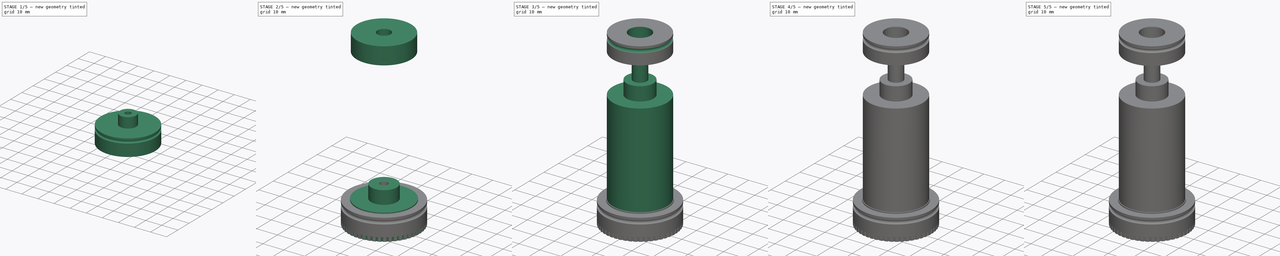
[diagram: build sequence overview — one tinted view per stage of 5, left to right]
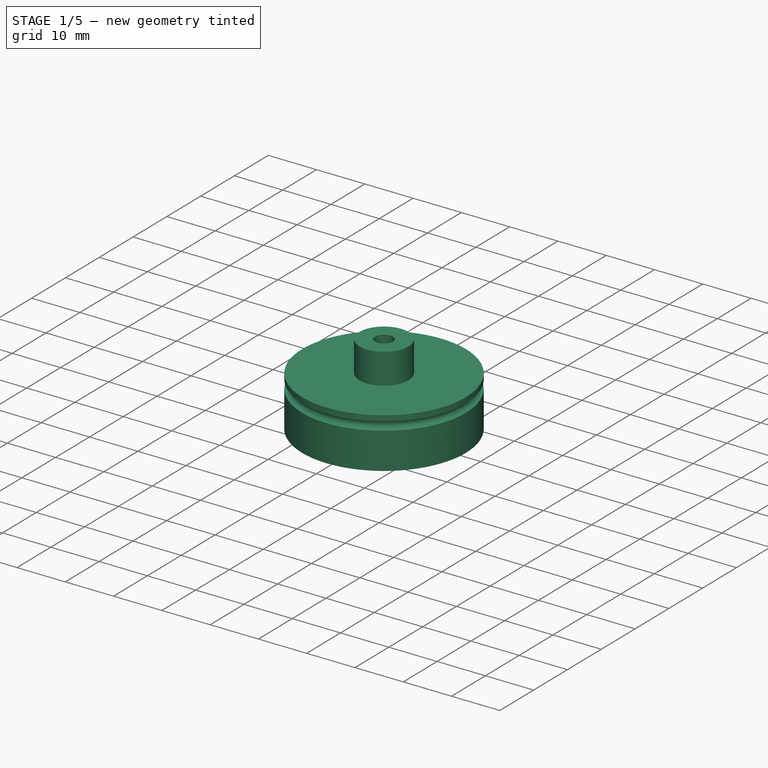
[diagram: stage 1 of 5 — iso view after this stage's code; geometry added in this stage tinted green]
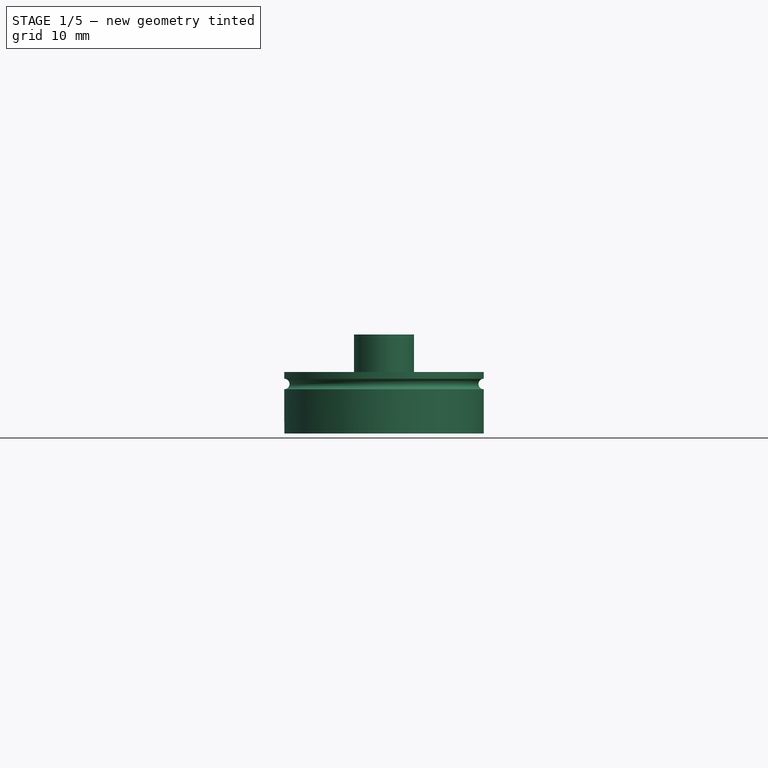
[diagram: stage 1 of 5 — front view after this stage's code; geometry added in this stage tinted green]
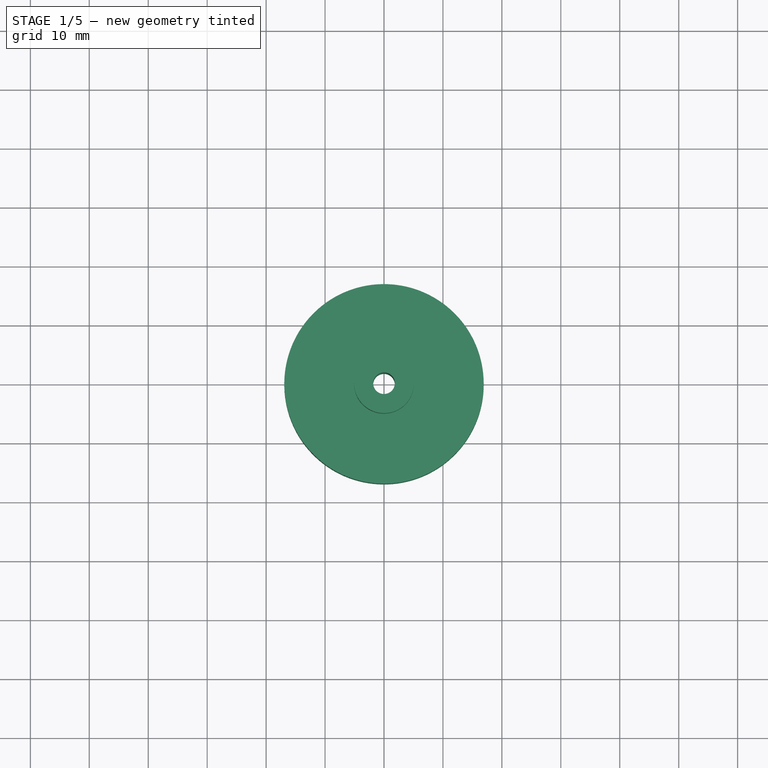
[diagram: stage 1 of 5 — top view after this stage's code; geometry added in this stage tinted green]
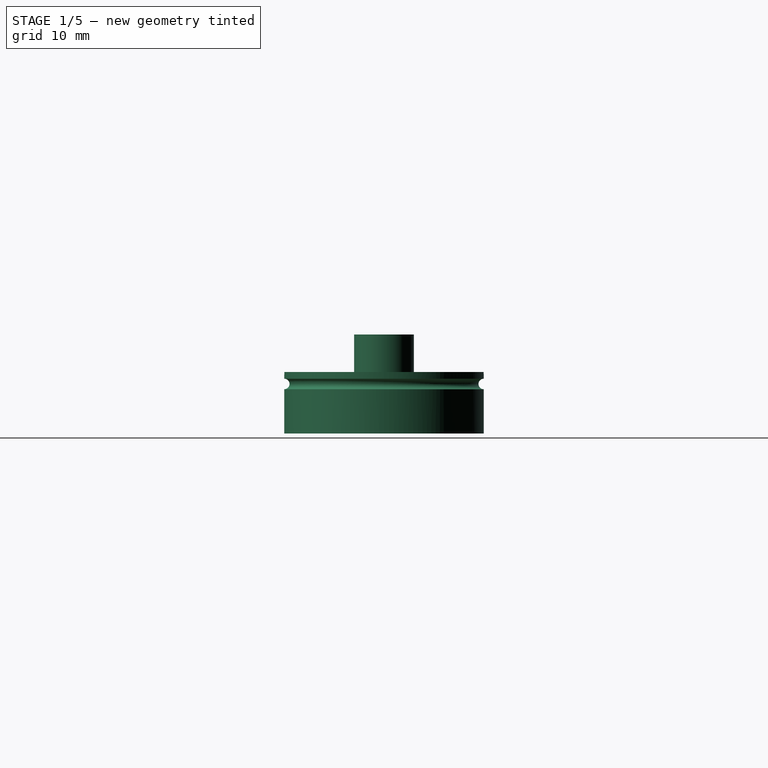
[diagram: stage 1 of 5 — right view after this stage's code; geometry added in this stage tinted green]
FCSTD DOCUMENT  (FreeCAD 0.17R8614 (Git))
Label: fermiac_3d_print_components
License: CreativeCommons Attribution-ShareAlike
LicenseURL: http://creativecommons.org/licenses/by-sa/4.0/
objects: Sketcher::SketchObject×41, PartDesign::Pad×22, PartDesign::Pocket×12, PartDesign::Groove×7, PartDesign::Body×7, PartDesign::ShapeBinder×2, PartDesign::PolarPattern×2
note: 134 computed .brp shape members not serialized (recipe doc carries the construction recipe); baked Part::Feature solids carry a one-line shape summary decoded from their .brp

FEATURE [PartDesign::Body] Body004  label="Wheel E"
  Model = -> [Sketch027,Pad017,Sketch028,Pad018,Sketch029,Pocket006,Sketch031,Groove004,Sketch032,Pocket007,PolarPattern]
  Origin = -> Body004Origin
  Tip = -> Pad017
FEATURE [Sketcher::SketchObject] Sketch033
  MapMode = 5
  Support = -> [XY_Plane005]
  sketch-geometry (1):
    g0: Circle CenterX=0 CenterY=0 CenterZ=0 NormalX=0 NormalY=0 NormalZ=1 Radius=16.9164
  constraints (2):
    c: Coincident(g0,g-1)
    c: Radius(g0) = 16.9164
FEATURE [PartDesign::Pad] Pad019
  Length = 10.43
  Length2 = 100
  Profile = -> Sketch033
  Type = 0
FEATURE [Sketcher::SketchObject] Sketch034
  MapMode = 5
  Placement = pos=(0,0,10.43) rot=(0,0,1;0rad)
  Support = -> [Pad019]
  sketch-geometry (1):
    g0: Circle CenterX=0 CenterY=0 CenterZ=0 NormalX=0 NormalY=0 NormalZ=1 Radius=5.08
  constraints (2):
    c: Coincident(g0,g-1)
    c: Radius(g0) = 5.08
FEATURE [PartDesign::Pad] Pad020
  BaseFeature = -> Pad019
  Length = 6.35
  Length2 = 100
  Profile = -> Sketch034
  Type = 0
FEATURE [Sketcher::SketchObject] Sketch035
  MapMode = 5
  Placement = pos=(0,0,0) rot=(1,0,0;3.14159rad)
  Support = -> [Pad020]
  sketch-geometry (1):
    g0: Circle CenterX=0 CenterY=0 CenterZ=0 NormalX=0 NormalY=0 NormalZ=1 Radius=1.84
  constraints (2):
    c: Coincident(g0,g-1)
    c: Radius(g0) = 1.84
FEATURE [PartDesign::Pocket] Pocket008
  BaseFeature = -> Pad020
  Length = 5
  Profile = -> Sketch035
  Type = 1
FEATURE [Sketcher::SketchObject] Sketch036
  ExternalGeometry = -> [Pocket008]
  MapMode = 5
  Placement = pos=(0,0,0) rot=(1,0,0;1.5708rad)
  Support = -> [XZ_Plane005]
  sketch-geometry (2):
    g0: GeomPoint [constr] X=0 Y=10.43 Z=0
    g1: Circle CenterX=-16.9164 CenterY=8.398 CenterZ=0 NormalX=0 NormalY=0 NormalZ=1 Radius=0.89
  constraints (5):
    c: PointOnObject(g0,g-3)
    c: Radius(g1) = 0.89
    c: DistanceY(g1,g0) = 2.032
    c: DistanceX(g1,g0) = 16.9164
    c: PointOnObject(g0,g-2)
FEATURE [PartDesign::Groove] Groove005
  Angle = 360
  Axis = (0,0,1)
  Base = (0,0,0)
  BaseFeature = -> Pocket008
  Profile = -> Sketch036
  ReferenceAxis = -> Z_Axis005
  Reversed = true
FEATURE [Sketcher::SketchObject] Sketch037
  ExternalGeometry = -> [Groove005]
  MapMode = 5
  Placement = pos=(0,0,0) rot=(1,0,0;3.14159rad)
  Support = -> [Groove005]
  sketch-geometry (1):
    g0: Circle CenterX=-16.9164 CenterY=0 CenterZ=0 NormalX=0 NormalY=0 NormalZ=1 Radius=0.4
  constraints (3):
    c: PointOnObject(g0,g-1)
    c: PointOnObject(g0,g-3)
    c: Radius(g0) = 0.4
FEATURE [PartDesign::Pocket] Pocket009
  BaseFeature = -> Groove005
  Length = 2
  Profile = -> Sketch037
  Type = 0
FEATURE [PartDesign::Body] Body005  label="Wheel C"
  Model = -> [Sketch033,Pad019,Sketch034,Pad020,Sketch035,Pocket008,Sketch036,Groove005,Sketch037,Pocket009,PolarPattern001]
  Origin = -> Body005Origin
  Tip = -> Pad019
FEATURE [Sketcher::SketchObject] Sketch038
  MapMode = 5
  Support = -> [XY_Plane006]
  sketch-geometry (1):
    g0: Circle CenterX=0 CenterY=0 CenterZ=0 NormalX=0 NormalY=0 NormalZ=1 Radius=4.5
  constraints (2):
    c: Coincident(g0,g-1)
    c: Radius(g0) = 4.5
FEATURE [PartDesign::Pad] Pad021
  Length = 10
  Length2 = 100
  Profile = -> Sketch038
  Type = 0
FEATURE [Sketcher::SketchObject] Sketch039
  MapMode = 5
  Placement = pos=(0,0,0) rot=(1,0,0;3.14159rad)
  Support = -> [Pad021]
  sketch-geometry (1):
    g0: Circle CenterX=0 CenterY=0 CenterZ=0 NormalX=0 NormalY=0 NormalZ=1 Radius=1.84
  constraints (2):
    c: Coincident(g0,g-1)
    c: Radius(g0) = 1.84
FEATURE [PartDesign::Pocket] Pocket010
  BaseFeature = -> Pad021
  Length = 5
  Profile = -> Sketch039
  Type = 1
FEATURE [Sketcher::SketchObject] Sketch040
  MapMode = 5
  Placement = pos=(0,0,10) rot=(0,0,1;0rad)
  Support = -> [Pocket010]
  sketch-geometry (1):
    g0: Circle CenterX=0 CenterY=0 CenterZ=0 NormalX=0 NormalY=0 NormalZ=1 Radius=3.5
  constraints (2):
    c: Coincident(g0,g-1)
    c: Radius(g0) = 3.5
FEATURE [PartDesign::Pocket] Pocket011
  BaseFeature = -> Pocket010
  Length = 2
  Profile = -> Sketch040
  Type = 0
FEATURE [Sketcher::SketchObject] Sketch041
  MapMode = 5
  Placement = pos=(0,0,0) rot=(1,0,0;1.5708rad)
  Support = -> [XZ_Plane006]
  sketch-geometry (4):
    g0: ArcOfCircle CenterX=-4.5 CenterY=5.125 CenterZ=0 NormalX=0 NormalY=0 NormalZ=1 Radius=1.875 StartAngle=0 EndAngle=3.14159
    g1: ArcOfCircle CenterX=-4.5 CenterY=2.875 CenterZ=0 NormalX=0 NormalY=0 NormalZ=1 Radius=1.875 StartAngle=3.14159 EndAngle=6.28319
    g2: LineSegment StartX=-6.375 StartY=5.125 StartZ=0 EndX=-6.375 EndY=2.875 EndZ=0
    g3: LineSegment StartX=-2.625 StartY=5.125 StartZ=0 EndX=-2.625 EndY=2.875 EndZ=0
  constraints (10):
    c: Tangent(g0,g3) = 1.5708
    c: Tangent(g0,g2) = -1.5708
    c: Tangent(g2,g1) = -1.5708
    c: Tangent(g3,g1) = 1.5708
    c: Vertical(g2)
    c: Equal(g0,g1)
    c: Radius(g1) = 1.875
    c: DistanceX(g1,g-1) = 4.5
    c: DistanceY(g-1,g1) = 2.875
    c: DistanceY(g1,g0) = 2.25
FEATURE [PartDesign::Groove] Groove006
  Angle = 360
  Axis = (0,0,1)
  Base = (0,0,0)
  BaseFeature = -> Pocket011
  Profile = -> Sketch041
  ReferenceAxis = -> Z_Axis006
  Reversed = true
FEATURE [PartDesign::Body] Body006  label="Thumb Screw"
  Model = -> [Sketch038,Pad021,Sketch039,Pocket010,Sketch040,Pocket011,Sketch041,Groove006]
  Origin = -> Body006Origin
  Tip = -> Groove006
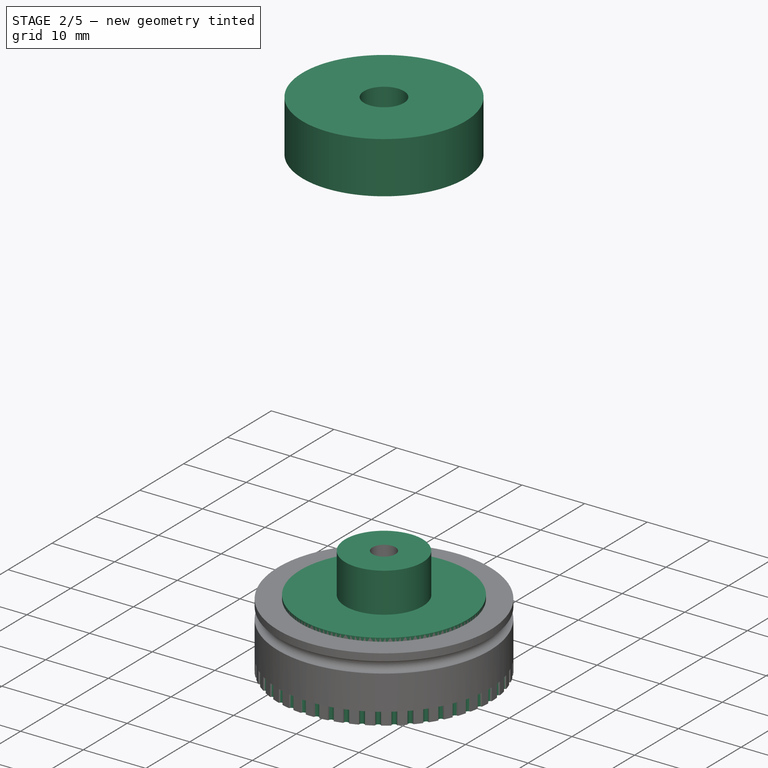
[diagram: stage 2 of 5 — iso view after this stage's code; geometry added in this stage tinted green]
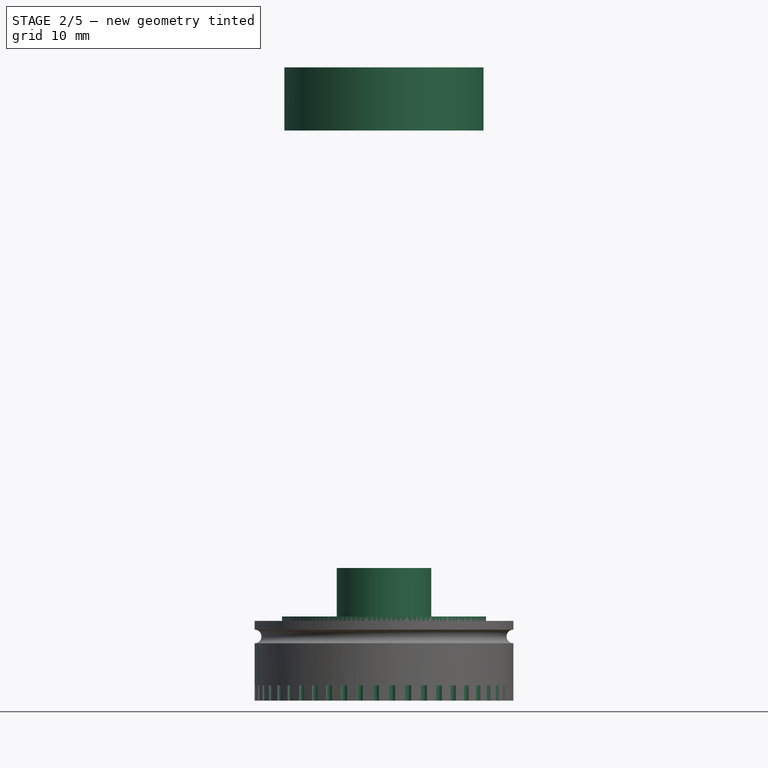
[diagram: stage 2 of 5 — front view after this stage's code; geometry added in this stage tinted green]
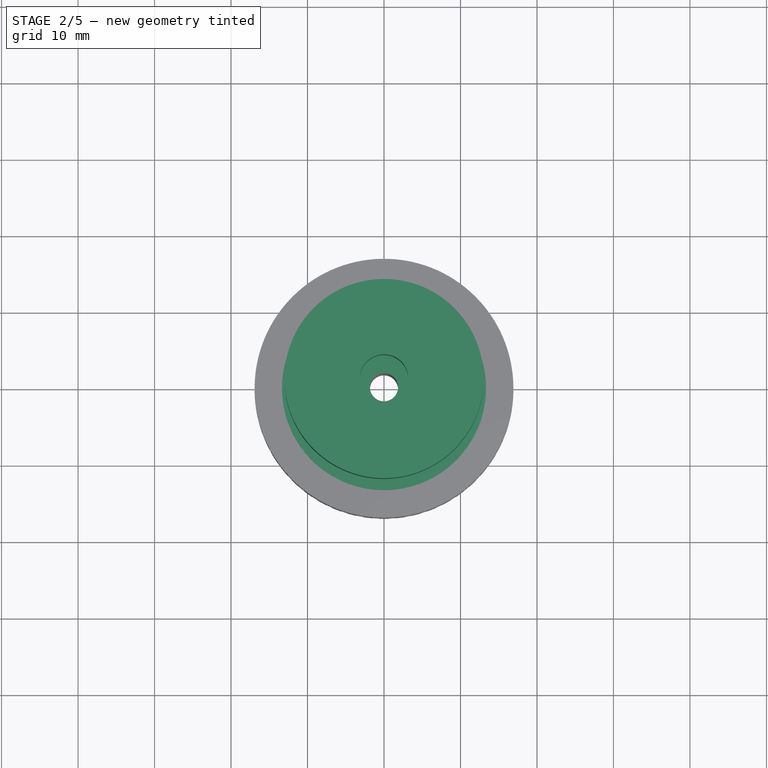
[diagram: stage 2 of 5 — top view after this stage's code; geometry added in this stage tinted green]
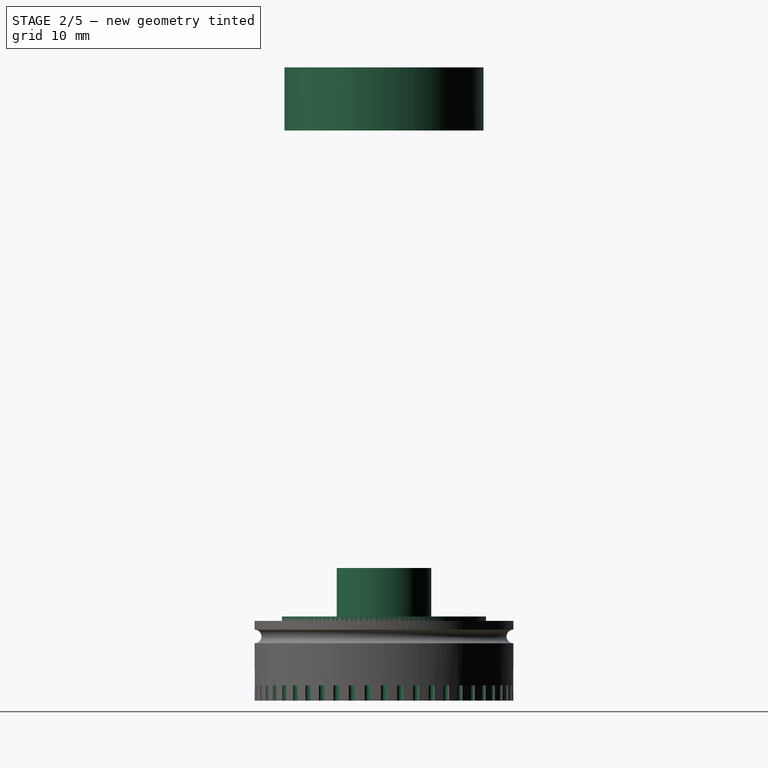
[diagram: stage 2 of 5 — right view after this stage's code; geometry added in this stage tinted green]
FEATURE [PartDesign::Body] Body002  label="Drum D (1)"
  Model = -> [Sketch017,Pad012,Sketch018,Pad013,Sketch019,Pad014,Sketch020,Pad015,Sketch021,Pocket003,Sketch022,Pocket004,Sketch023,Groove002]
  Origin = -> Body002Origin
  Tip = -> Groove002
FEATURE [PartDesign::ShapeBinder] CopyGroove002
FEATURE [Sketcher::SketchObject] Sketch024
  MapMode = 5
  Placement = pos=(0,0,74.549) rot=(0,0,1;0rad)
  Support = -> [CopyGroove002]
  sketch-geometry (2):
    g0: Circle CenterX=0 CenterY=0 CenterZ=0 NormalX=0 NormalY=0 NormalZ=1 Radius=13.0175
    g1: Circle CenterX=0 CenterY=0 CenterZ=0 NormalX=0 NormalY=0 NormalZ=1 Radius=3.18
  constraints (4):
    c: Coincident(g0,g-1)
    c: Radius(g0) = 13.0175
    c: Coincident(g1,g-1)
    c: Radius(g1) = 3.18
FEATURE [PartDesign::Pad] Pad016
  Length = 8.255
  Length2 = 100
  Profile = -> Sketch024
  Type = 0
FEATURE [PartDesign::Body] Body003  label="Drum D (2)"
  Model = -> [CopyGroove002,Sketch024,Pad016,Sketch025,Pocket005,Sketch026,Groove003]
  Origin = -> Body003Origin
  Tip = -> Groove003
FEATURE [Sketcher::SketchObject] Sketch027
  MapMode = 5
  Support = -> [XY_Plane004]
  sketch-geometry (1):
    g0: Circle CenterX=0 CenterY=0 CenterZ=0 NormalX=0 NormalY=0 NormalZ=1 Radius=13.335
  constraints (1):
    c: Radius(g0) = 13.335
FEATURE [PartDesign::Pad] Pad017
  Length = 11
  Length2 = 100
  Profile = -> Sketch027
  Type = 0
FEATURE [Sketcher::SketchObject] Sketch028
  MapMode = 5
  Placement = pos=(0,0,11) rot=(0,0,1;0rad)
  Support = -> [Pad017]
  sketch-geometry (1):
    g0: Circle CenterX=0 CenterY=0 CenterZ=0 NormalX=0 NormalY=0 NormalZ=1 Radius=6.1849
  constraints (2):
    c: Coincident(g0,g-1)
    c: Radius(g0) = 6.1849
FEATURE [PartDesign::Pad] Pad018
  BaseFeature = -> Pad017
  Length = 6.35
  Length2 = 100
  Profile = -> Sketch028
  Type = 0
FEATURE [Sketcher::SketchObject] Sketch029
  MapMode = 5
  Placement = pos=(0,0,0) rot=(1,0,0;3.14159rad)
  Support = -> [Pad018]
  sketch-geometry (1):
    g0: Circle CenterX=0 CenterY=0 CenterZ=0 NormalX=0 NormalY=0 NormalZ=1 Radius=1.84
  constraints (2):
    c: Coincident(g0,g-1)
    c: Radius(g0) = 1.84
FEATURE [PartDesign::Pocket] Pocket006
  BaseFeature = -> Pad018
  Length = 5
  Profile = -> Sketch029
  Type = 1
FEATURE [Sketcher::SketchObject] Sketch031
  MapMode = 5
  Placement = pos=(0,0,0) rot=(1,0,0;1.5708rad)
  Support = -> [XZ_Plane004]
  sketch-geometry (2):
    g0: GeomPoint [constr] X=0 Y=12.3478 Z=0
    g1: Circle CenterX=-13.335 CenterY=9.31784 CenterZ=0 NormalX=0 NormalY=0 NormalZ=1 Radius=0.89
  constraints (4):
    c: PointOnObject(g0,g-2)
    c: Radius(g1) = 0.89
    c: DistanceX(g1,g-1) = 13.335
    c: DistanceY(g1,g0) = 3.03
FEATURE [PartDesign::Groove] Groove004
  Angle = 360
  Axis = (0,0,1)
  Base = (0,0,0)
  BaseFeature = -> Pocket006
  Profile = -> Sketch031
  ReferenceAxis = -> Z_Axis004
  Reversed = true
FEATURE [Sketcher::SketchObject] Sketch032
  ExternalGeometry = -> [Groove004]
  MapMode = 5
  Placement = pos=(0,0,0) rot=(1,0,0;3.14159rad)
  Support = -> [Groove004]
  sketch-geometry (1):
    g0: Circle CenterX=-13.335 CenterY=0 CenterZ=0 NormalX=0 NormalY=0 NormalZ=1 Radius=0.4
  constraints (3):
    c: PointOnObject(g0,g-3)
    c: PointOnObject(g0,g-1)
    c: Radius(g0) = 0.4
FEATURE [PartDesign::Pocket] Pocket007
  BaseFeature = -> Groove004
  Length = 2
  Profile = -> Sketch032
  Type = 0
FEATURE [PartDesign::PolarPattern] PolarPattern
  Angle = 360
  Axis = -> Sketch032 [N_Axis]
  BaseFeature = -> Pocket007
  Occurrences = 20
  Originals = -> [Pocket007]
FEATURE [PartDesign::PolarPattern] PolarPattern001
  Angle = 360
  Axis = -> Sketch037 [N_Axis]
  BaseFeature = -> Pocket009
  Occurrences = 50
  Originals = -> [Pocket009]
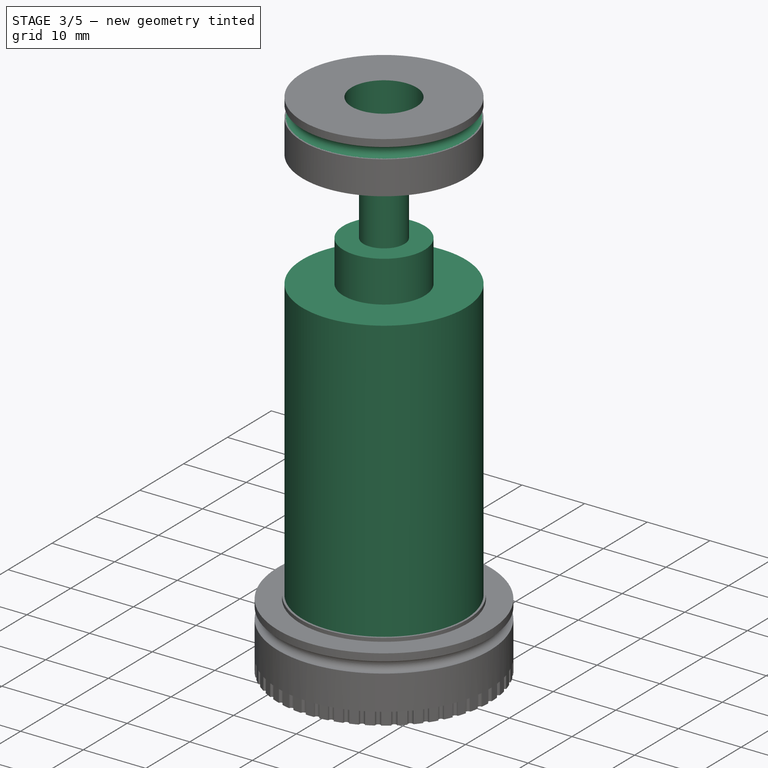
[diagram: stage 3 of 5 — iso view after this stage's code; geometry added in this stage tinted green]
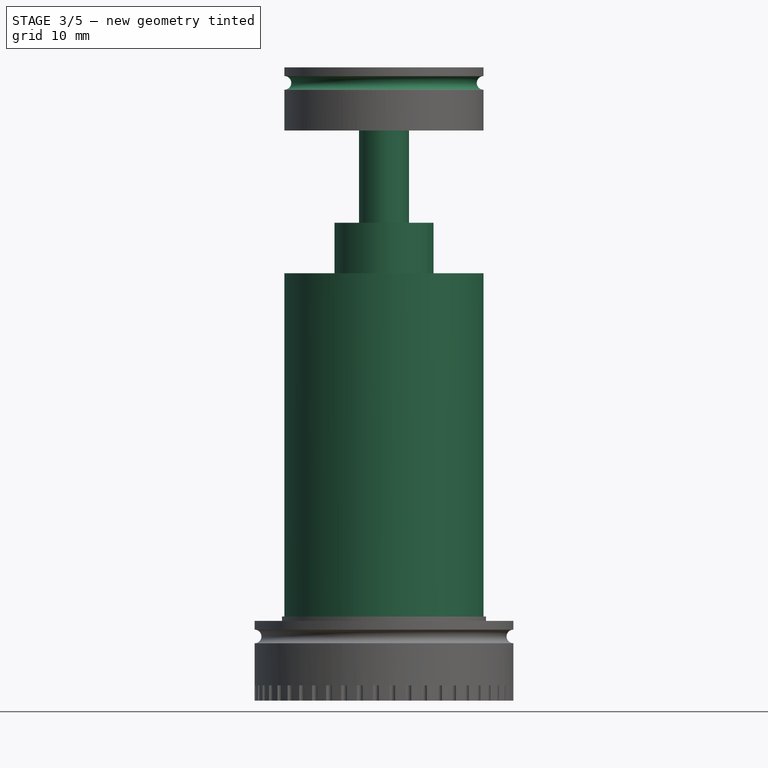
[diagram: stage 3 of 5 — front view after this stage's code; geometry added in this stage tinted green]
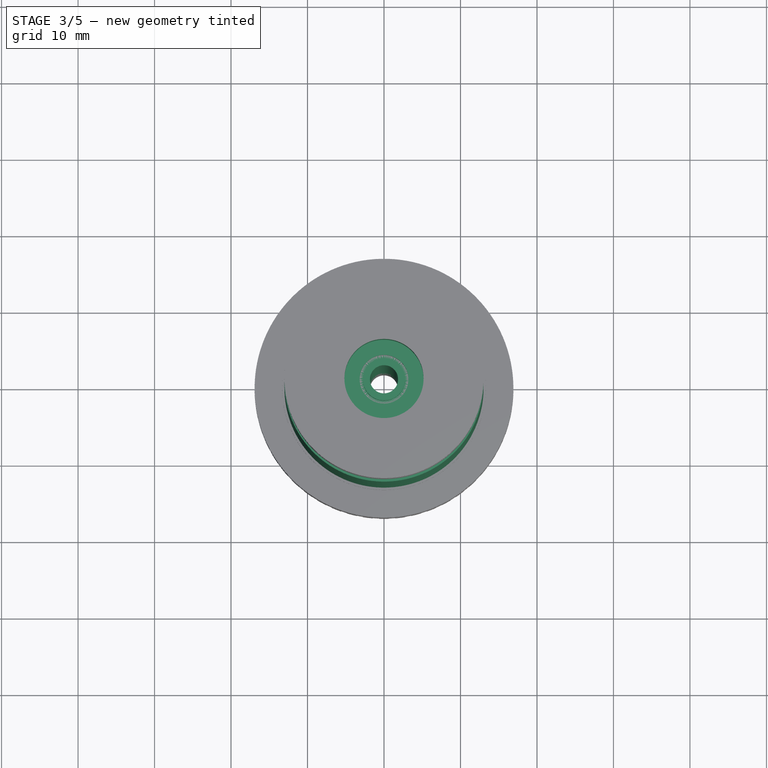
[diagram: stage 3 of 5 — top view after this stage's code; geometry added in this stage tinted green]
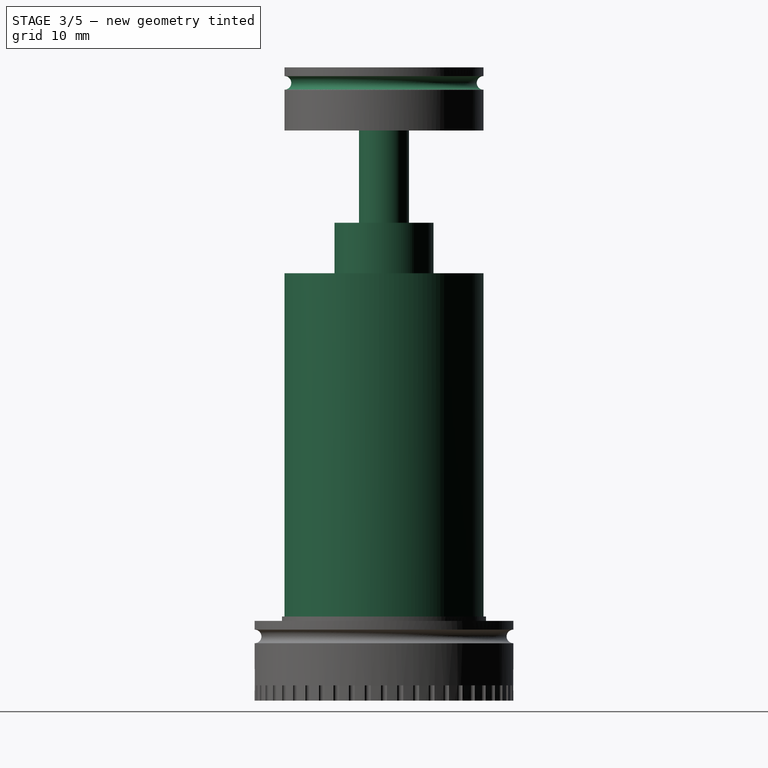
[diagram: stage 3 of 5 — right view after this stage's code; geometry added in this stage tinted green]
FEATURE [PartDesign::Body] Body001  label="Drum F (2)"
  Model = -> [CopyPocket001,Sketch013,Pad011,Sketch014,Pocket002,Sketch016,Groove001]
  Origin = -> Body001Origin
  Tip = -> Groove001
FEATURE [Sketcher::SketchObject] Sketch017
  MapMode = 5
  Support = -> [XY_Plane002]
  sketch-geometry (1):
    g0: Circle CenterX=0 CenterY=0 CenterZ=0 NormalX=0 NormalY=0 NormalZ=1 Radius=13.0175
  constraints (2):
    c: Coincident(g0,g-1)
    c: Radius(g0) = 13.0175
FEATURE [PartDesign::Pad] Pad012
  Length = 55.88
  Length2 = 100
  Profile = -> Sketch017
  Type = 0
FEATURE [Sketcher::SketchObject] Sketch018
  MapMode = 5
  Placement = pos=(0,0,55.88) rot=(0,0,1;0rad)
  Support = -> [Pad012]
  sketch-geometry (1):
    g0: Circle CenterX=0 CenterY=0 CenterZ=0 NormalX=0 NormalY=0 NormalZ=1 Radius=6.477
  constraints (2):
    c: Coincident(g0,g-1)
    c: Radius(g0) = 6.477
FEATURE [PartDesign::Pad] Pad013
  BaseFeature = -> Pad012
  Length = 6.604
  Length2 = 100
  Profile = -> Sketch018
  Type = 0
FEATURE [Sketcher::SketchObject] Sketch019
  MapMode = 5
  Placement = pos=(0,0,62.484) rot=(0,0,1;0rad)
  Support = -> [Pad013]
  sketch-geometry (1):
    g0: Circle CenterX=0 CenterY=0 CenterZ=0 NormalX=0 NormalY=0 NormalZ=1 Radius=3.2639
  constraints (2):
    c: Coincident(g0,g-1)
    c: Radius(g0) = 3.2639
FEATURE [PartDesign::Pad] Pad014
  BaseFeature = -> Pad013
  Length = 12.065
  Length2 = 100
  Profile = -> Sketch019
  Type = 0
FEATURE [Sketcher::SketchObject] Sketch020
  ExternalGeometry = -> [Pad014]
  MapMode = 5
  Placement = pos=(0,0,74.549) rot=(0,0,1;0rad)
  Support = -> [Pad014]
  sketch-geometry (2):
    g0: Circle CenterX=0 CenterY=0 CenterZ=0 NormalX=0 NormalY=0 NormalZ=1 Radius=2.7639
    g1: LineSegment [constr] StartX=-3.2639 StartY=0 StartZ=0 EndX=-2.7639 EndY=0 EndZ=0
  constraints (6):
    c: Coincident(g0,g-1)
    c: PointOnObject(g1,g-3)
    c: PointOnObject(g1,g0)
    c: Horizontal(g1)
    c: PointOnObject(g1,g-1)
    c: DistanceX(g1,g1) = 0.5
FEATURE [PartDesign::Pad] Pad015
  BaseFeature = -> Pad014
  Length = 2.25
  Length2 = 100
  Profile = -> Sketch020
  Type = 0
FEATURE [PartDesign::Body] Body  label="Drum F (1)"
  Model = -> [Sketch,Pad,Sketch001,Pad001,Sketch002,Pad002,Sketch003,Pad003,Sketch004,Pad004,Sketch005,Pad005,Sketch006,Pad006,Sketch007,Pad007,Sketch008,Pad008,Sketch009,Pad009,Sketch010,Pad010,Sketch011,Pocket,Sketch012,Pocket001,Sketch015,Groove]
  Origin = -> BodyOrigin
  Tip = -> Groove
FEATURE [PartDesign::Pocket] Pocket003
  BaseFeature = -> Pad015
  Length = 7
  Profile = -> Sketch021
  Type = 0
FEATURE [Sketcher::SketchObject] Sketch022
  MapMode = 5
  Placement = pos=(0,0,7) rot=(1,0,0;3.14159rad)
  Support = -> [Pocket003]
  sketch-geometry (1):
    g0: Circle CenterX=0 CenterY=0 CenterZ=0 NormalX=0 NormalY=0 NormalZ=1 Radius=1.84
  constraints (2):
    c: Coincident(g0,g-1)
    c: Radius(g0) = 1.84
FEATURE [PartDesign::Pocket] Pocket004
  BaseFeature = -> Pocket003
  Length = 5
  Profile = -> Sketch022
  Type = 1
FEATURE [Sketcher::SketchObject] Sketch023
  MapMode = 5
  Placement = pos=(0,0,0) rot=(1,0,0;1.5708rad)
  Support = -> [XZ_Plane002]
  sketch-geometry (1):
    g0: Circle CenterX=-13.0175 CenterY=2.032 CenterZ=0 NormalX=0 NormalY=0 NormalZ=1 Radius=0.89
  constraints (3):
    c: DistanceY(g-1,g0) = 2.032
    c: DistanceX(g0,g-1) = 13.0175
    c: Radius(g0) = 0.89
FEATURE [PartDesign::Groove] Groove002
  Angle = 360
  Axis = (0,0,1)
  Base = (0,0,0)
  BaseFeature = -> Pocket004
  Profile = -> Sketch023
  ReferenceAxis = -> Z_Axis002
  Reversed = true
FEATURE [Sketcher::SketchObject] Sketch025
  MapMode = 5
  Placement = pos=(0,0,82.804) rot=(0,0,1;0rad)
  Support = -> [Pad016]
  sketch-geometry (1):
    g0: Circle CenterX=0 CenterY=0 CenterZ=0 NormalX=0 NormalY=0 NormalZ=1 Radius=5.175
  constraints (2):
    c: Coincident(g0,g-1)
    c: Radius(g0) = 5.175
FEATURE [PartDesign::Pocket] Pocket005
  BaseFeature = -> Pad016
  Length = 6
  Profile = -> Sketch025
  Type = 0
FEATURE [Sketcher::SketchObject] Sketch026
  ExternalGeometry = -> [Pocket005]
  MapMode = 5
  Placement = pos=(0,0,0) rot=(1,0,0;1.5708rad)
  Support = -> [XZ_Plane003]
  sketch-geometry (2):
    g0: Circle CenterX=-13.0175 CenterY=80.772 CenterZ=0 NormalX=0 NormalY=0 NormalZ=1 Radius=0.89
    g1: GeomPoint [constr] X=0 Y=82.804 Z=0
  constraints (5):
    c: Radius(g0) = 0.89
    c: PointOnObject(g1,g-3)
    c: PointOnObject(g1,g-2)
    c: DistanceY(g0,g1) = 2.032
    c: DistanceX(g0,g1) = 13.0175
FEATURE [PartDesign::Groove] Groove003
  Angle = 360
  Axis = (0,0,1)
  Base = (0,0,0)
  BaseFeature = -> Pocket005
  Profile = -> Sketch026
  ReferenceAxis = -> Z_Axis003
  Reversed = true
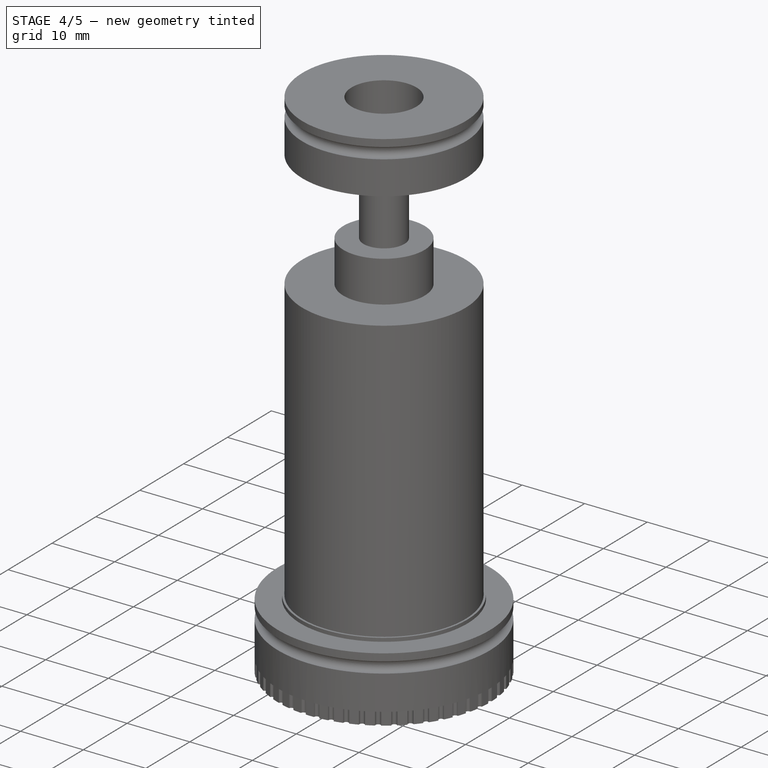
[diagram: stage 4 of 5 — iso view after this stage's code; geometry added in this stage tinted green]
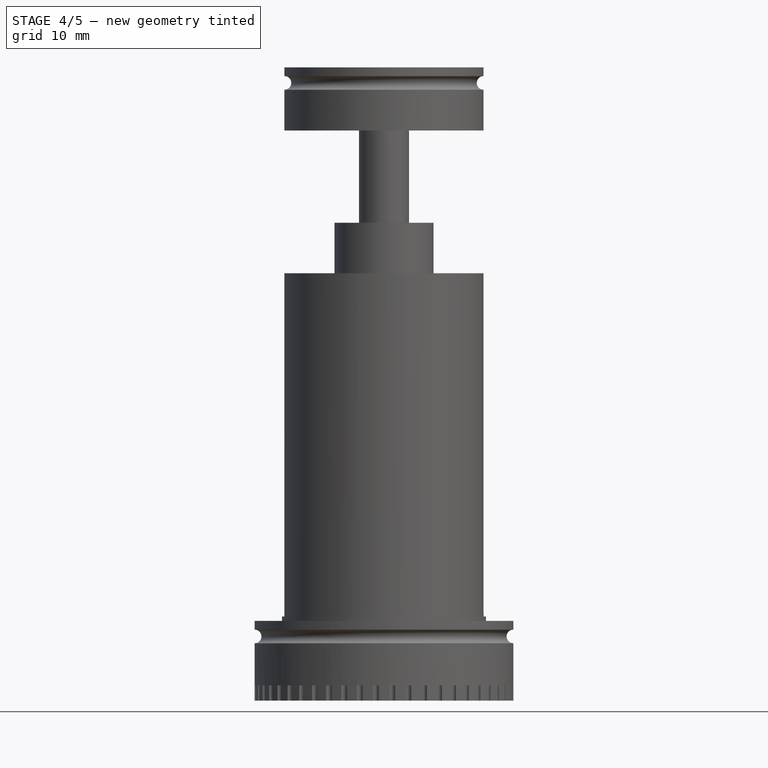
[diagram: stage 4 of 5 — front view after this stage's code; geometry added in this stage tinted green]
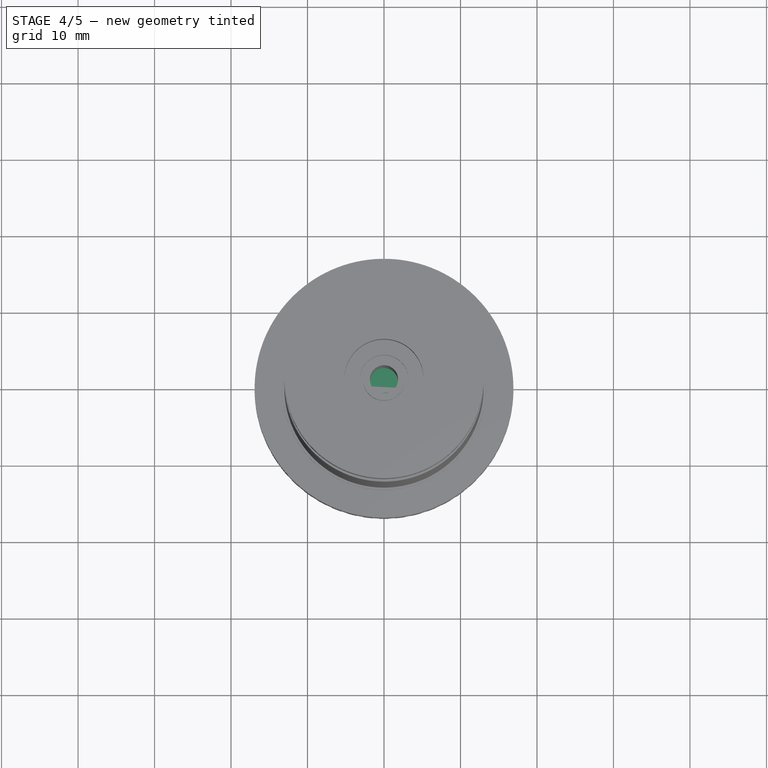
[diagram: stage 4 of 5 — top view after this stage's code; geometry added in this stage tinted green]
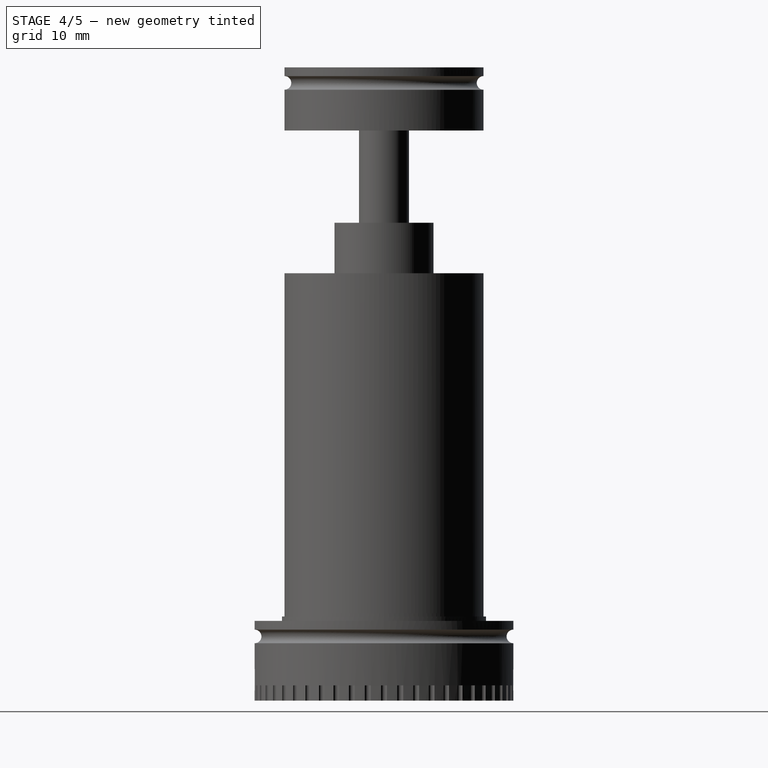
[diagram: stage 4 of 5 — right view after this stage's code; geometry added in this stage tinted green]
FEATURE [Sketcher::SketchObject] Sketch
  MapMode = 5
  Support = -> [XY_Plane]
  sketch-geometry (1):
    g0: Circle CenterX=0 CenterY=0 CenterZ=0 NormalX=0 NormalY=0 NormalZ=1 Radius=13.02
  constraints (2):
    c: Coincident(g0,g-1)
    c: Radius(g0) = 13.02  '0'
FEATURE [PartDesign::Pad] Pad
  Length = 11.43
  Length2 = 100
  Profile = -> Sketch
  Type = 0
FEATURE [Sketcher::SketchObject] Sketch001
  MapMode = 5
  Placement = pos=(0,0,11.43) rot=(0,0,1;0rad)
  Support = -> [Pad]
  sketch-geometry (1):
    g0: Circle CenterX=0 CenterY=0 CenterZ=0 NormalX=0 NormalY=0 NormalZ=1 Radius=11.13
  constraints (2):
    c: Coincident(g0,g-1)
    c: Radius(g0) = 11.13  '1'
FEATURE [PartDesign::Pad] Pad001
  BaseFeature = -> Pad
  Length = 6.35
  Length2 = 100
  Profile = -> Sketch001
  Type = 0
FEATURE [Sketcher::SketchObject] Sketch002
  MapMode = 5
  Placement = pos=(0,0,17.78) rot=(0,0,1;0rad)
  Support = -> [Pad001]
  sketch-geometry (1):
    g0: Circle CenterX=0 CenterY=0 CenterZ=0 NormalX=0 NormalY=0 NormalZ=1 Radius=9.5504
  constraints (2):
    c: Coincident(g0,g-1)
    c: Radius(g0) = 9.5504  '2'
FEATURE [PartDesign::Pad] Pad002
  BaseFeature = -> Pad001
  Length = 6.35
  Length2 = 100
  Profile = -> Sketch002
  Type = 0
FEATURE [Sketcher::SketchObject] Sketch003
  MapMode = 5
  Placement = pos=(0,0,24.13) rot=(0,0,1;0rad)
  Support = -> [Pad002]
  sketch-geometry (1):
    g0: Circle CenterX=0 CenterY=0 CenterZ=0 NormalX=0 NormalY=0 NormalZ=1 Radius=8.18515
  constraints (2):
    c: Coincident(g0,g-1)
    c: Radius(g0) = 8.18515  '3'
FEATURE [PartDesign::Pad] Pad003
  BaseFeature = -> Pad002
  Length = 6.35
  Length2 = 100
  Profile = -> Sketch003
  Type = 0
FEATURE [Sketcher::SketchObject] Sketch004
  MapMode = 5
  Placement = pos=(0,0,30.48) rot=(0,0,1;0rad)
  Support = -> [Pad003]
  sketch-geometry (1):
    g0: Circle CenterX=0 CenterY=0 CenterZ=0 NormalX=0 NormalY=0 NormalZ=1 Radius=7.0358
  constraints (2):
    c: Coincident(g0,g-1)
    c: Radius(g0) = 7.0358  '4'
FEATURE [PartDesign::Pad] Pad004
  BaseFeature = -> Pad003
  Length = 6.35
  Length2 = 100
  Profile = -> Sketch004
  Type = 0
FEATURE [Sketcher::SketchObject] Sketch005
  MapMode = 5
  Placement = pos=(0,0,36.83) rot=(0,0,1;0rad)
  Support = -> [Pad004]
  sketch-geometry (1):
    g0: Circle CenterX=0 CenterY=0 CenterZ=0 NormalX=0 NormalY=0 NormalZ=1 Radius=6.0325
  constraints (2):
    c: Coincident(g0,g-1)
    c: Radius(g0) = 6.0325  '5'
FEATURE [PartDesign::Pad] Pad005
  BaseFeature = -> Pad004
  Length = 6.35
  Length2 = 100
  Profile = -> Sketch005
  Type = 0
FEATURE [Sketcher::SketchObject] Sketch006
  MapMode = 5
  Placement = pos=(0,0,43.18) rot=(0,0,1;0rad)
  Support = -> [Pad005]
  sketch-geometry (1):
    g0: Circle CenterX=0 CenterY=0 CenterZ=0 NormalX=0 NormalY=0 NormalZ=1 Radius=5.1689
  constraints (2):
    c: Coincident(g0,g-1)
    c: Radius(g0) = 5.1689  '6'
FEATURE [PartDesign::Pad] Pad006
  BaseFeature = -> Pad005
  Length = 6.35
  Length2 = 100
  Profile = -> Sketch006
  Type = 0
FEATURE [Sketcher::SketchObject] Sketch007
  MapMode = 5
  Placement = pos=(0,0,49.53) rot=(0,0,1;0rad)
  Support = -> [Pad006]
  sketch-geometry (1):
    g0: Circle CenterX=0 CenterY=0 CenterZ=0 NormalX=0 NormalY=0 NormalZ=1 Radius=4.4069
  constraints (2):
    c: Coincident(g0,g-1)
    c: Radius(g0) = 4.4069  '7'
FEATURE [PartDesign::Pad] Pad007
  BaseFeature = -> Pad006
  Length = 6.35
  Length2 = 100
  Profile = -> Sketch007
  Type = 0
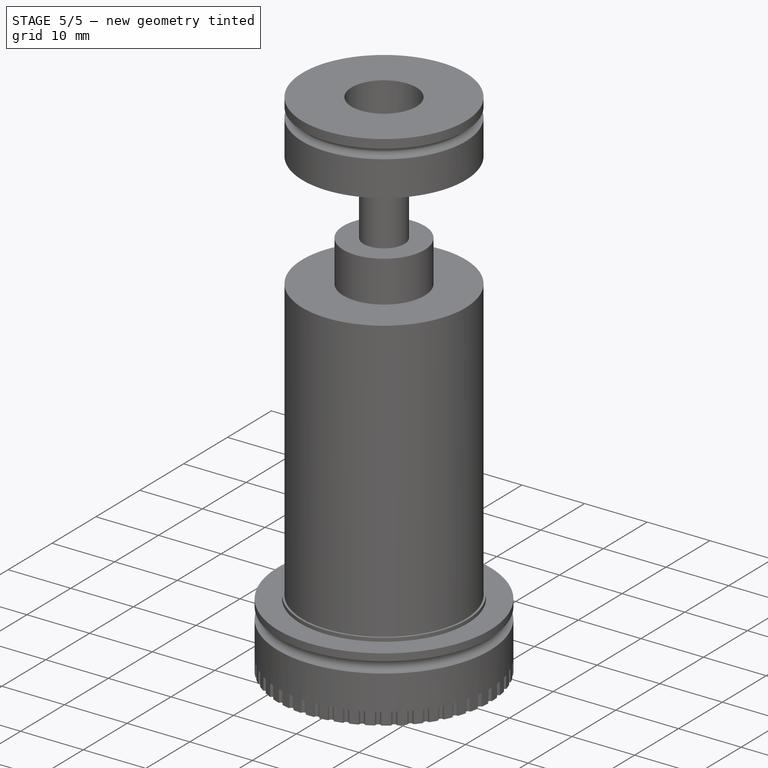
[diagram: stage 5 of 5 — iso view after this stage's code; geometry added in this stage tinted green]
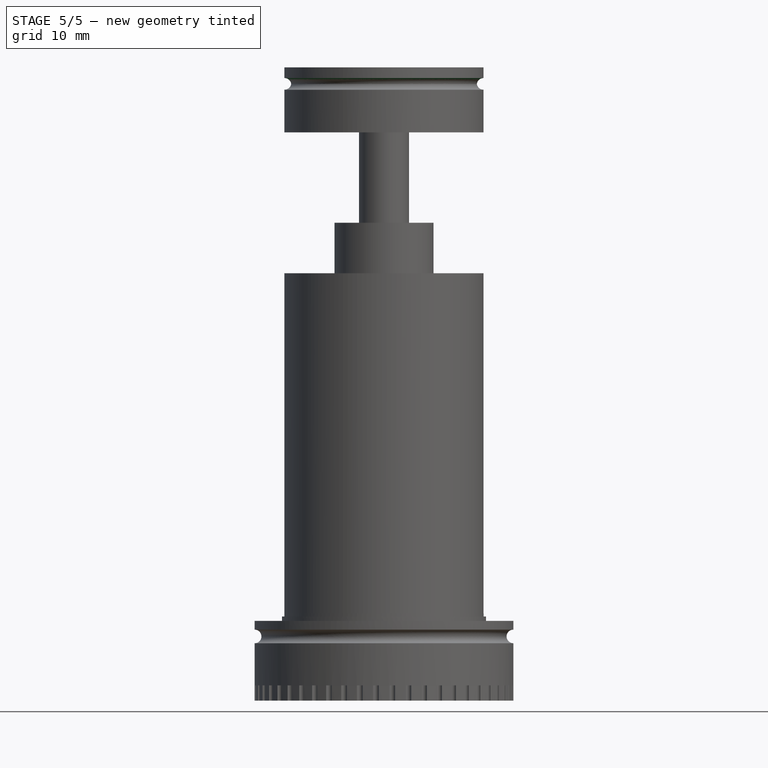
[diagram: stage 5 of 5 — front view after this stage's code; geometry added in this stage tinted green]
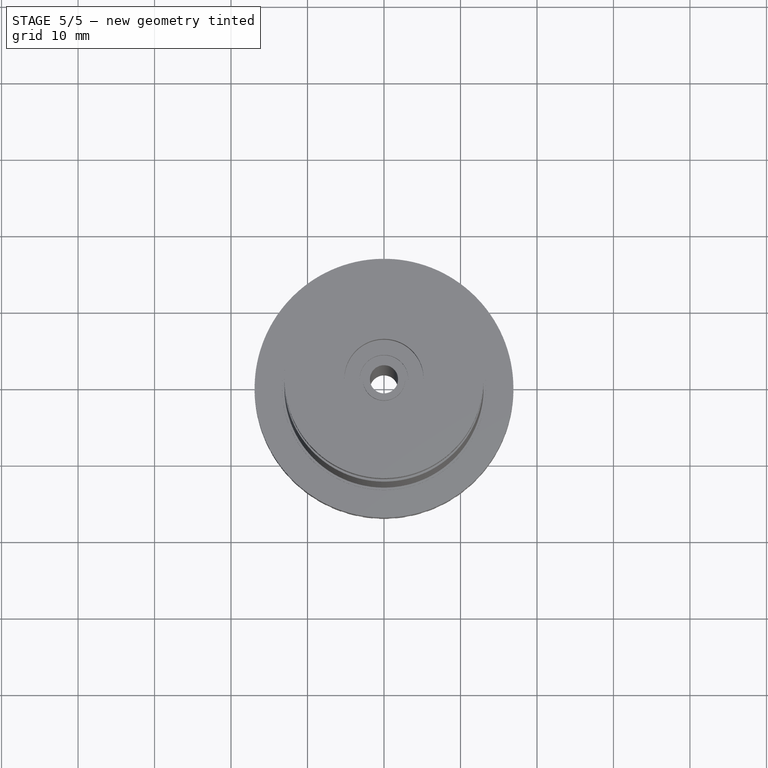
[diagram: stage 5 of 5 — top view after this stage's code; geometry added in this stage tinted green]
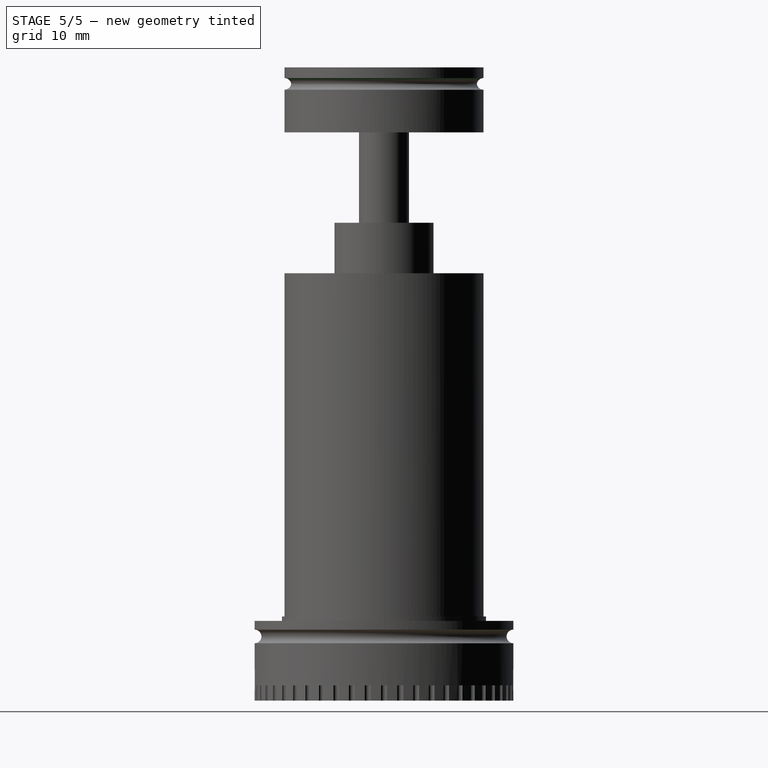
[diagram: stage 5 of 5 — right view after this stage's code; geometry added in this stage tinted green]
FEATURE [Sketcher::SketchObject] Sketch008
  MapMode = 5
  Placement = pos=(0,0,55.88) rot=(0,0,1;0rad)
  Support = -> [Pad007]
  sketch-geometry (1):
    g0: Circle CenterX=0 CenterY=0 CenterZ=0 NormalX=0 NormalY=0 NormalZ=1 Radius=3.7973
  constraints (2):
    c: Coincident(g0,g-1)
    c: Radius(g0) = 3.7973  '8'
FEATURE [PartDesign::Pad] Pad008
  BaseFeature = -> Pad007
  Length = 6.35
  Length2 = 100
  Profile = -> Sketch008
  Type = 0
FEATURE [Sketcher::SketchObject] Sketch009
  MapMode = 5
  Placement = pos=(0,0,62.23) rot=(0,0,1;0rad)
  Support = -> [Pad008]
  sketch-geometry (1):
    g0: Circle CenterX=0 CenterY=0 CenterZ=0 NormalX=0 NormalY=0 NormalZ=1 Radius=3.2512
  constraints (2):
    c: Coincident(g0,g-1)
    c: Radius(g0) = 3.2512  '9'
FEATURE [PartDesign::Pad] Pad009
  BaseFeature = -> Pad008
  Length = 12.06
  Length2 = 100
  Profile = -> Sketch009
  Type = 0
FEATURE [Sketcher::SketchObject] Sketch010
  ExternalGeometry = -> [Pad009]
  MapMode = 5
  Placement = pos=(0,0,74.29) rot=(0,0,1;0rad)
  Support = -> [Pad009]
  sketch-geometry (2):
    g0: Circle CenterX=0 CenterY=0 CenterZ=0 NormalX=0 NormalY=0 NormalZ=1 Radius=2.7512
    g1: LineSegment [constr] StartX=-3.2512 StartY=0 StartZ=0 EndX=-2.7512 EndY=0 EndZ=0
  constraints (6):
    c: Coincident(g0,g-1)
    c: PointOnObject(g1,g-3)
    c: PointOnObject(g1,g0)
    c: PointOnObject(g1,g-1)
    c: Horizontal(g1)
    c: DistanceX(g1,g1) = 0.5
FEATURE [PartDesign::Pad] Pad010
  BaseFeature = -> Pad009
  Length = 2.25
  Length2 = 100
  Profile = -> Sketch010
  Type = 0
FEATURE [Sketcher::SketchObject] Sketch011
  MapMode = 5
  Placement = pos=(0,0,0) rot=(1,0,0;3.14159rad)
  Support = -> [Pad010]
  sketch-geometry (1):
    g0: Circle CenterX=0 CenterY=0 CenterZ=0 NormalX=0 NormalY=0 NormalZ=1 Radius=5.175
  constraints (2):
    c: Coincident(g0,g-1)
    c: Radius(g0) = 5.175
FEATURE [PartDesign::Pocket] Pocket
  BaseFeature = -> Pad010
  Length = 7
  Profile = -> Sketch011
  Type = 0
FEATURE [Sketcher::SketchObject] Sketch012
  MapMode = 5
  Placement = pos=(0,0,7) rot=(1,0,0;3.14159rad)
  Support = -> [Pocket]
  sketch-geometry (1):
    g0: Circle CenterX=0 CenterY=0 CenterZ=0 NormalX=0 NormalY=0 NormalZ=1 Radius=1.84
  constraints (2):
    c: Coincident(g0,g-1)
    c: Radius(g0) = 1.84
FEATURE [PartDesign::Pocket] Pocket001
  BaseFeature = -> Pocket
  Length = 5
  Profile = -> Sketch012
  Type = 1
FEATURE [PartDesign::ShapeBinder] CopyPocket001
FEATURE [Sketcher::SketchObject] Sketch013
  ExternalGeometry = -> [CopyPocket001]
  MapMode = 5
  Placement = pos=(0,0,74.295) rot=(0,0,1;0rad)
  Support = -> [CopyPocket001]
  sketch-geometry (2):
    g0: Circle CenterX=0 CenterY=0 CenterZ=0 NormalX=0 NormalY=0 NormalZ=1 Radius=13.0175
    g1: Circle CenterX=0 CenterY=0 CenterZ=0 NormalX=0 NormalY=0 NormalZ=1 Radius=3.18
  constraints (4):
    c: Coincident(g0,g-1)
    c: Radius(g0) = 13.0175
    c: Coincident(g1,g-1)
    c: Radius(g1) = 3.18
FEATURE [PartDesign::Pad] Pad011
  Length = 8.255
  Length2 = 100
  Profile = -> Sketch013
  Type = 0
FEATURE [Sketcher::SketchObject] Sketch014
  MapMode = 5
  Placement = pos=(0,0,82.55) rot=(0,0,1;0rad)
  Support = -> [Pad011]
  sketch-geometry (1):
    g0: Circle CenterX=0 CenterY=0 CenterZ=0 NormalX=0 NormalY=0 NormalZ=1 Radius=5.175
  constraints (2):
    c: Coincident(g0,g-1)
    c: Radius(g0) = 5.175
FEATURE [PartDesign::Pocket] Pocket002
  BaseFeature = -> Pad011
  Length = 6
  Profile = -> Sketch014
  Type = 0
FEATURE [Sketcher::SketchObject] Sketch015
  MapMode = 5
  Placement = pos=(0,0,0) rot=(1,0,0;1.5708rad)
  Support = -> [XZ_Plane]
  sketch-geometry (1):
    g0: Circle CenterX=-13.0175 CenterY=2.032 CenterZ=0 NormalX=0 NormalY=0 NormalZ=1 Radius=0.89
  constraints (3):
    c: DistanceY(g-1,g0) = 2.032
    c: DistanceX(g0,g-1) = 13.0175
    c: Radius(g0) = 0.89
FEATURE [Sketcher::SketchObject] Sketch016
  ExternalGeometry = -> [Pocket002]
  MapMode = 5
  Placement = pos=(0,0,0) rot=(1,0,0;1.5708rad)
  Support = -> [XZ_Plane001]
  sketch-geometry (3):
    g0: Circle CenterX=-13.0175 CenterY=80.518 CenterZ=0 NormalX=0 NormalY=0 NormalZ=1 Radius=0.89
    g1: LineSegment [constr] StartX=-13.0175 StartY=80.518 StartZ=0 EndX=-13.0175 EndY=82.55 EndZ=0
    g2: GeomPoint [constr] X=0 Y=82.55 Z=0
  constraints (8):
    c: Radius(g0) = 0.89
    c: Coincident(g1,g0)
    c: PointOnObject(g1,g-3)
    c: Vertical(g1)
    c: DistanceY(g1,g1) = 2.032
    c: PointOnObject(g2,g-3)
    c: PointOnObject(g2,g-2)
    c: DistanceX(g1,g2) = 13.0175
FEATURE [PartDesign::Groove] Groove001
  Angle = 360
  Axis = (0,0,1)
  Base = (0,0,0)
  BaseFeature = -> Pocket002
  Profile = -> Sketch016
  ReferenceAxis = -> Sketch016 [V_Axis]
  Reversed = true
FEATURE [Sketcher::SketchObject] Sketch021
  MapMode = 5
  Placement = pos=(0,0,0) rot=(1,0,0;3.14159rad)
  Support = -> [Pad015]
  sketch-geometry (1):
    g0: Circle CenterX=0 CenterY=0 CenterZ=0 NormalX=0 NormalY=0 NormalZ=1 Radius=5.175
  constraints (2):
    c: Coincident(g0,g-1)
    c: Radius(g0) = 5.175
FEATURE [PartDesign::Groove] Groove
  Angle = 360
  Axis = (0,0,1)
  Base = (0,0,0)
  BaseFeature = -> Pocket001
  Profile = -> Sketch015
  ReferenceAxis = -> Z_Axis
  Reversed = true
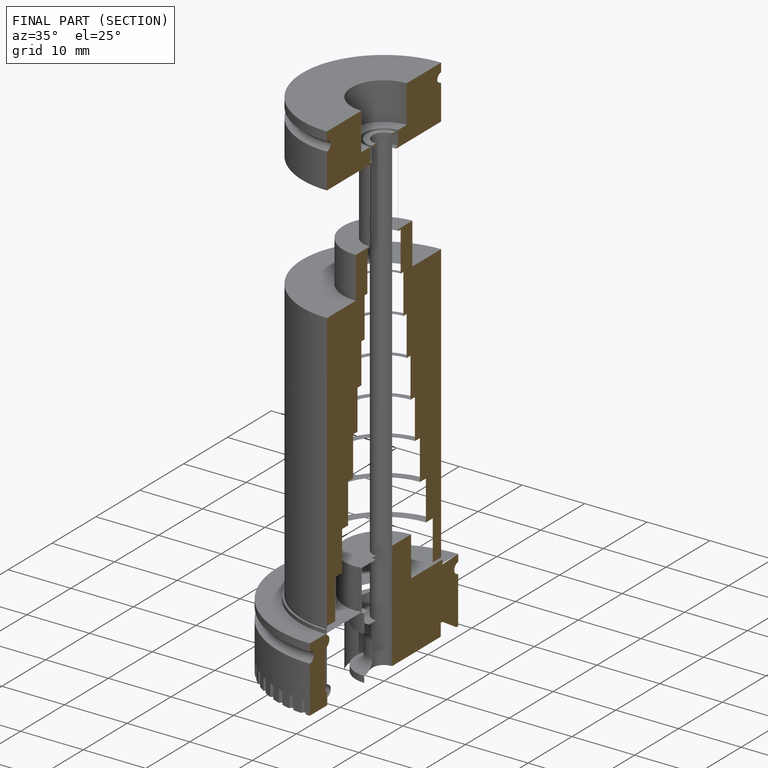
[diagram: finished part — half-section view (interior)]
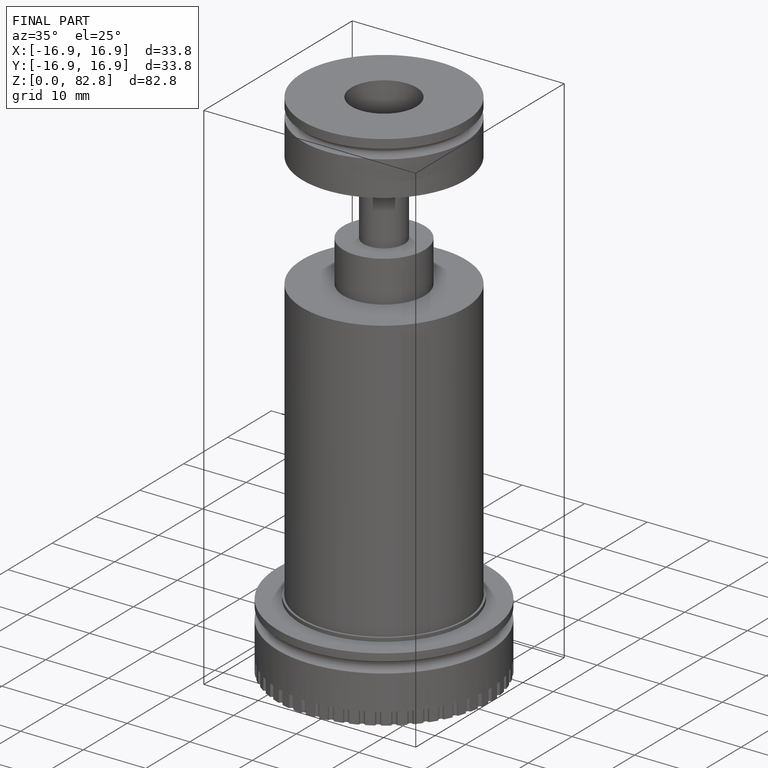
[diagram: finished part — iso view with bounding-box wireframe]
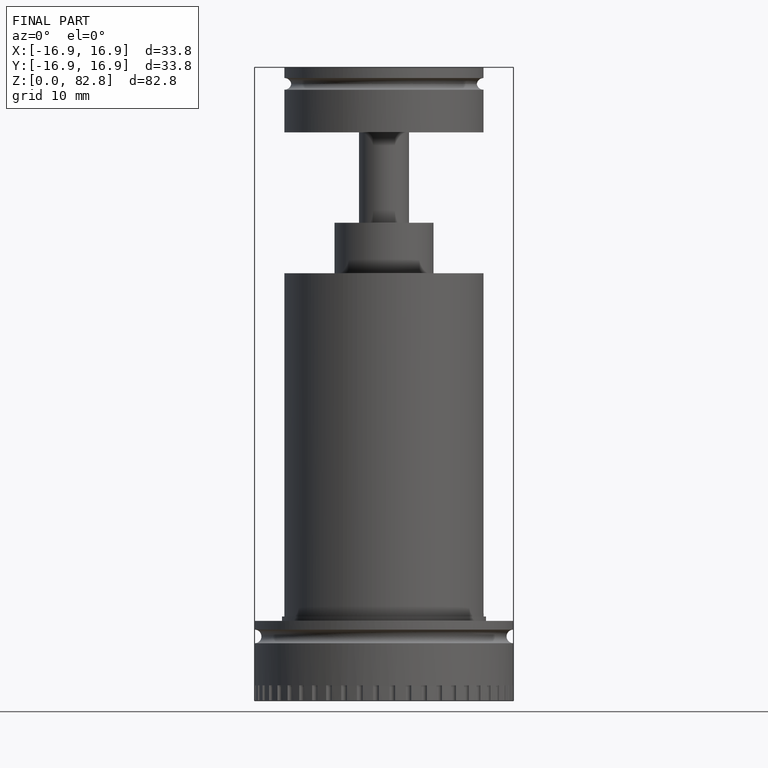
[diagram: finished part — front view with bounding-box wireframe]
